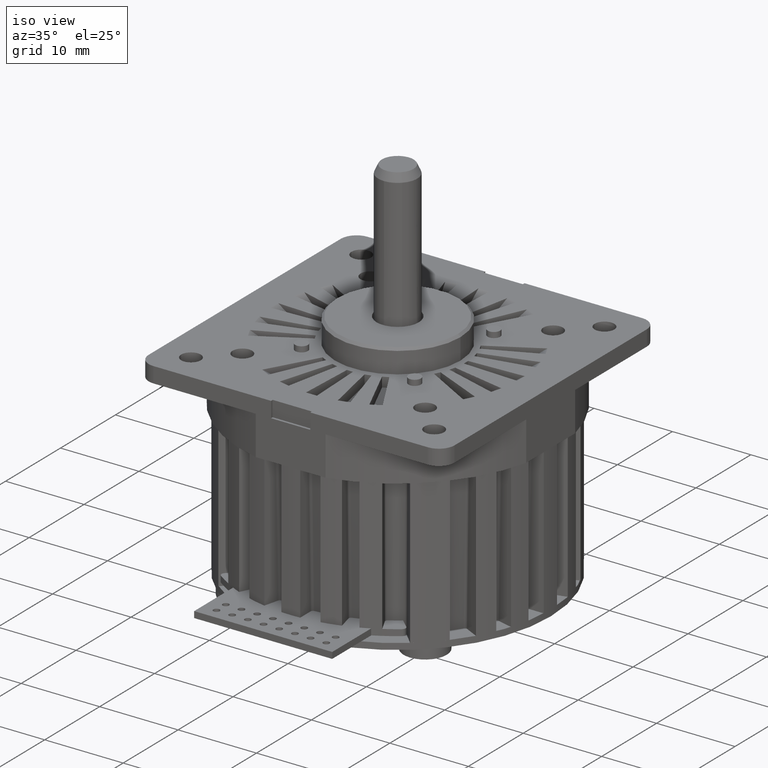
[diagram: clean part render]
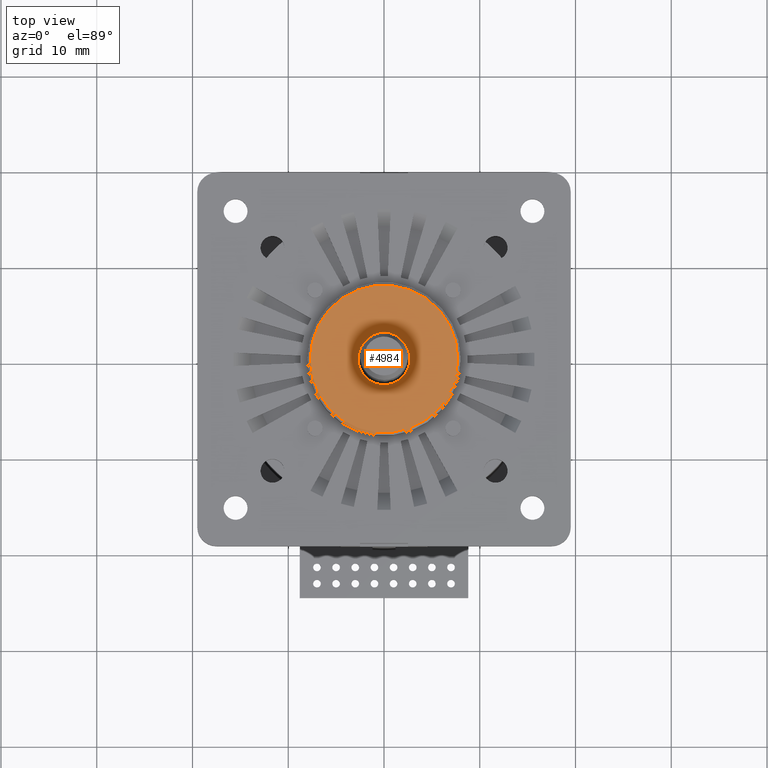
[diagram: tour spotlight — one face highlighted and labeled with its STEP entity id]
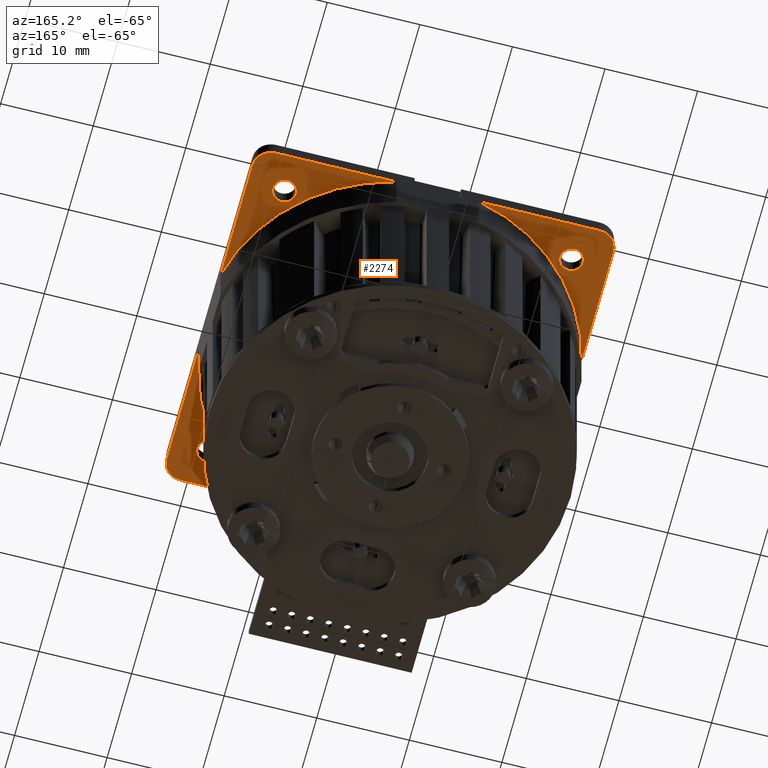
[diagram: tour spotlight — one face highlighted and labeled with its STEP entity id]
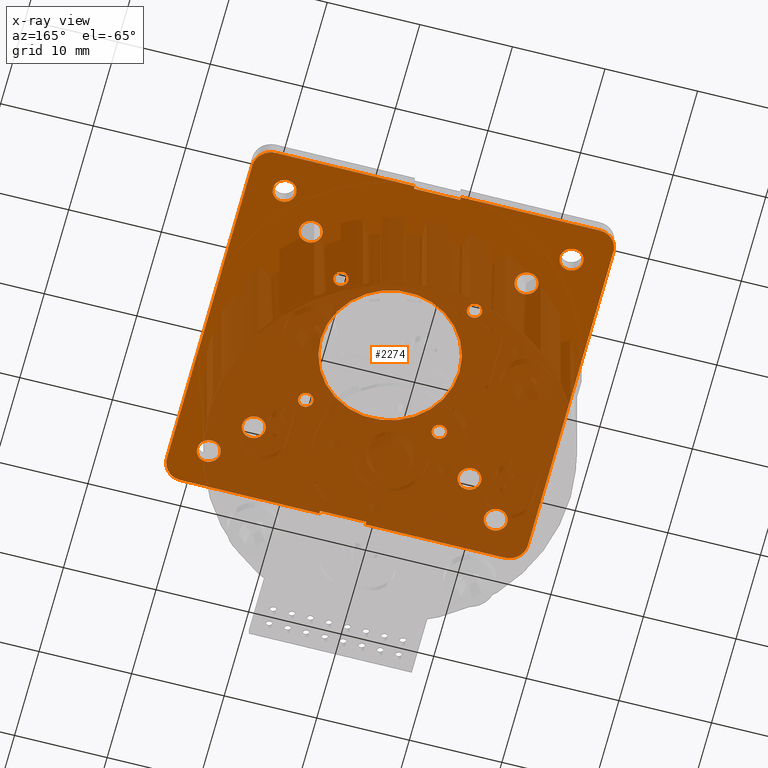
[diagram: x-ray of the same camera — body ghosted, this tour face saturated]
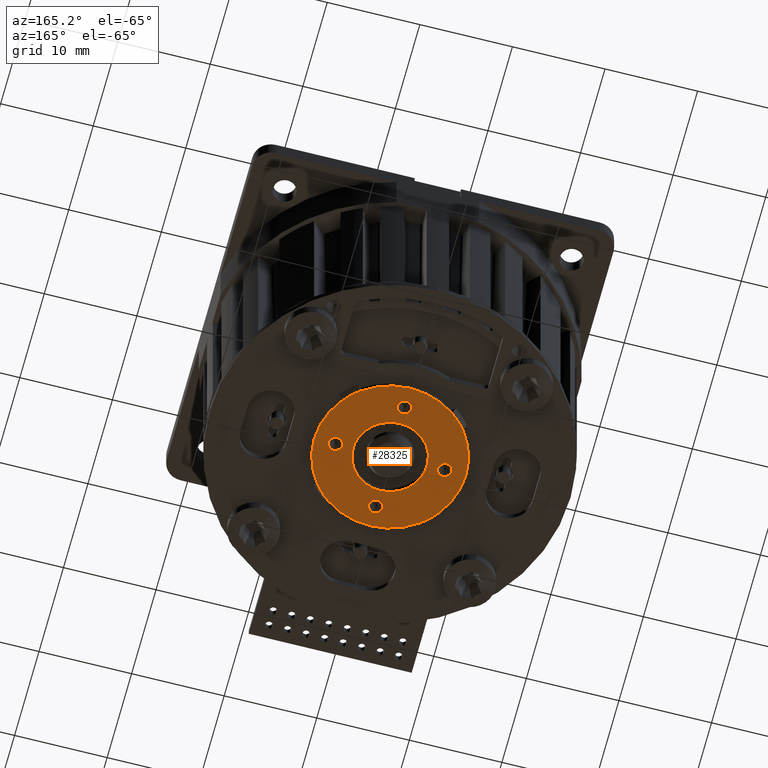
[diagram: tour spotlight — one face highlighted and labeled with its STEP entity id]
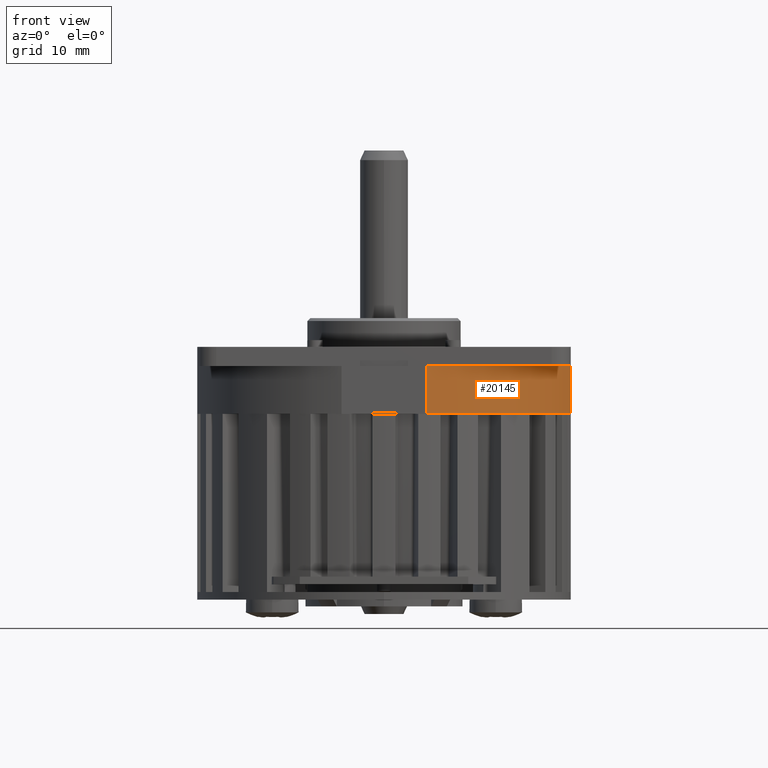
[diagram: tour spotlight — one face highlighted and labeled with its STEP entity id]
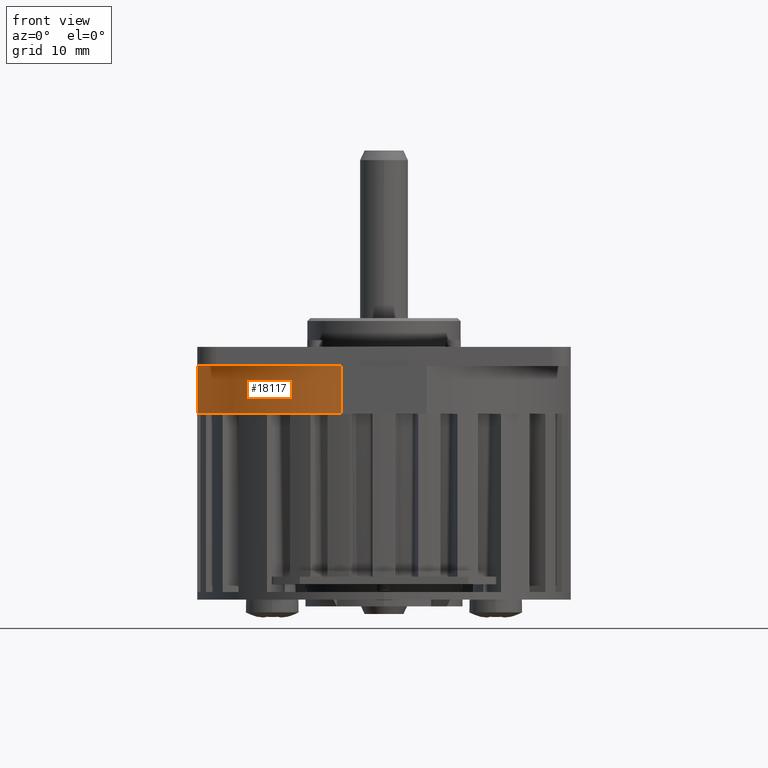
[diagram: tour spotlight — one face highlighted and labeled with its STEP entity id]
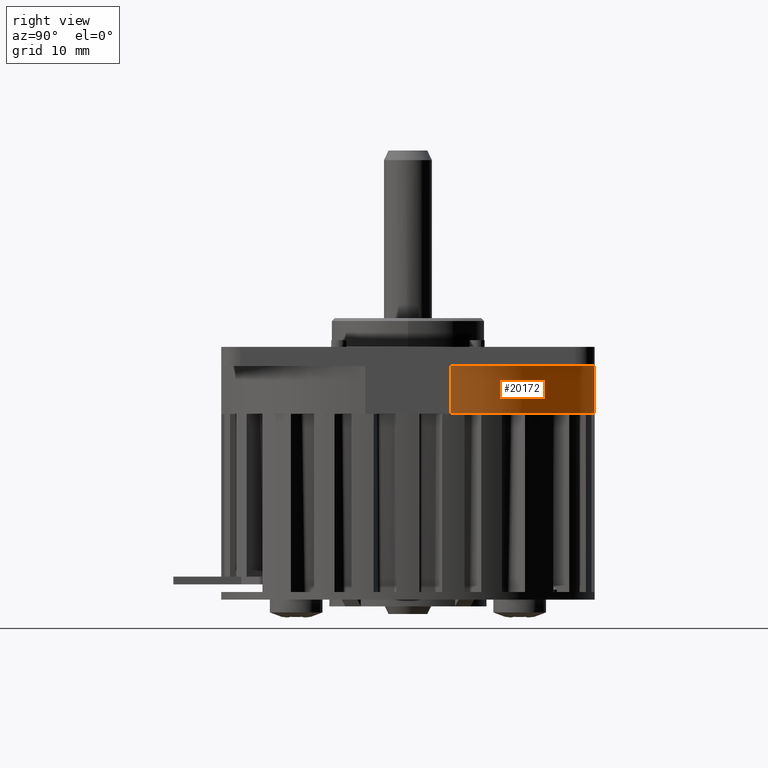
[diagram: tour spotlight — one face highlighted and labeled with its STEP entity id]
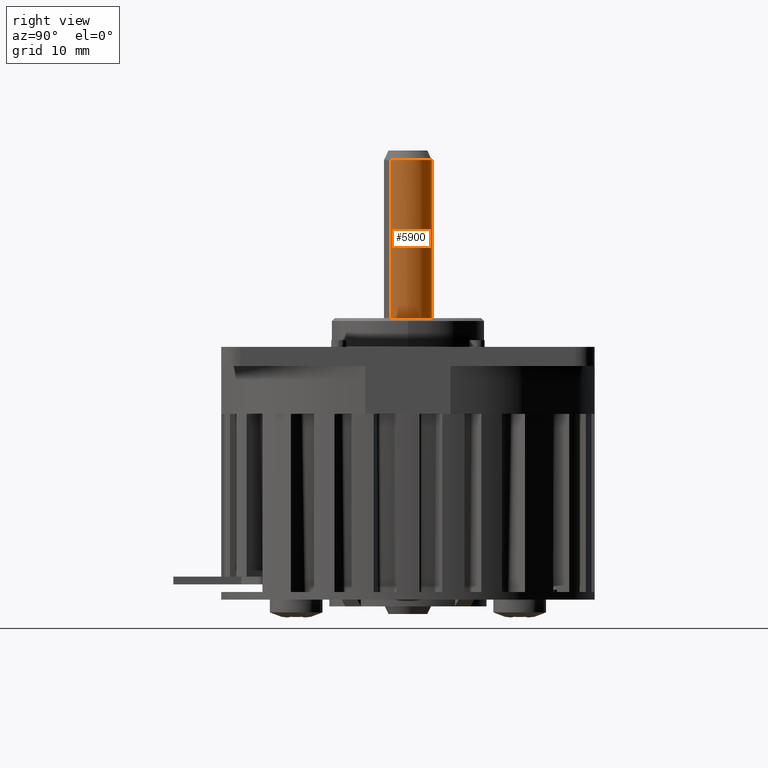
[diagram: tour spotlight — one face highlighted and labeled with its STEP entity id]
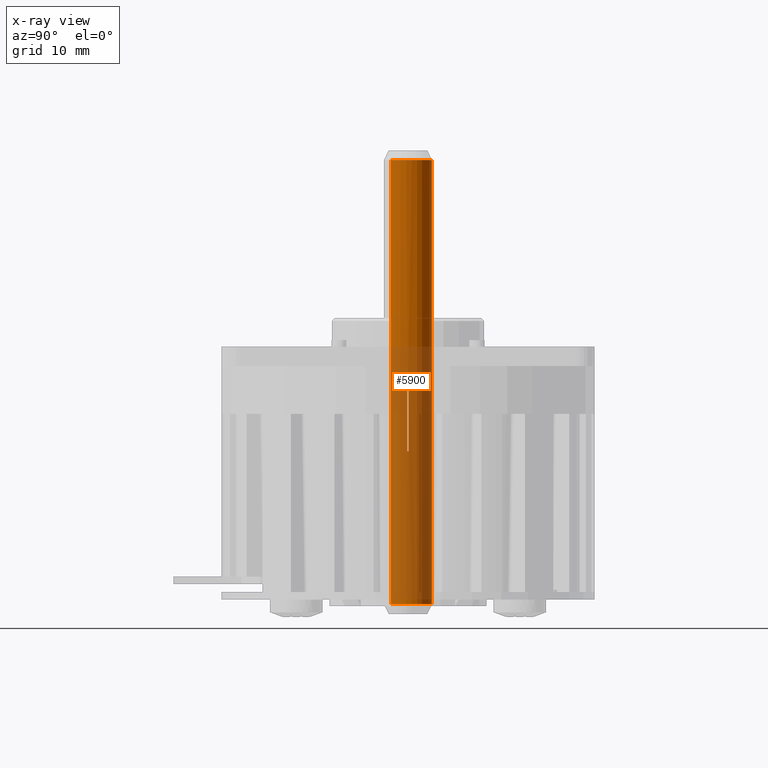
[diagram: x-ray of the same camera — body ghosted, this tour face saturated]
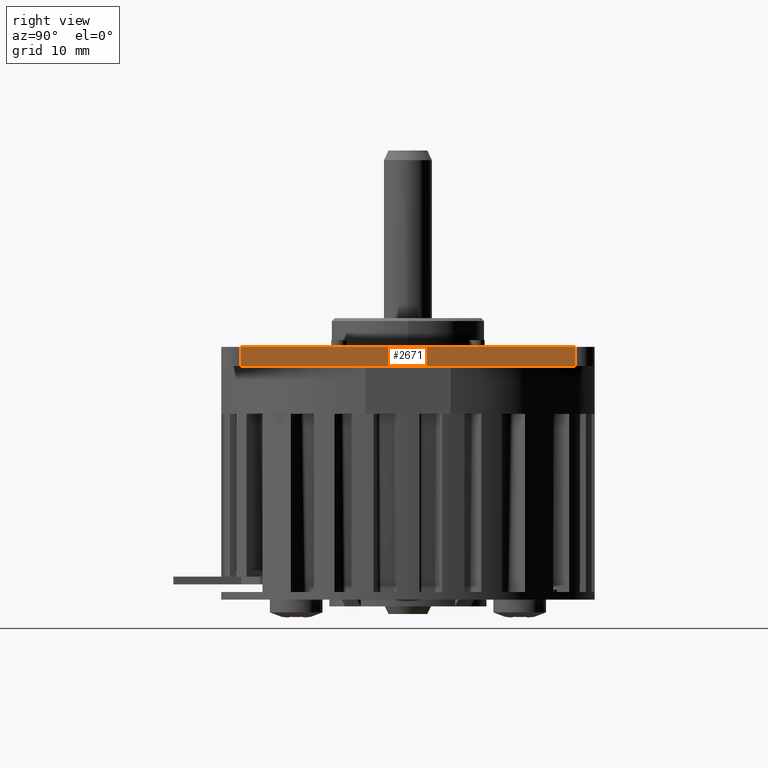
[diagram: tour spotlight — one face highlighted and labeled with its STEP entity id]
A machine part: a face-by-face anatomy tour. The part has 991 B-rep faces; the first image is the clean iso view, then the 8 largest visible faces are spotlighted one at a time (largest first), each with its STEP entity span.

Face 1 — top view, entity #4984. In plain terms, the highlighted planar face has unit normal (0, 0, 1).
Definition (entity closure, byte-faithful):
#4794=CARTESIAN_POINT('',(0.E0,0.E0,5.35E0));
#4795=DIRECTION('',(0.E0,0.E0,1.E0));
#4796=DIRECTION('',(-1.E0,0.E0,0.E0));
#4797=AXIS2_PLACEMENT_3D('',#4794,#4795,#4796);
#4799=CARTESIAN_POINT('',(0.E0,0.E0,5.35E0));
#4800=DIRECTION('',(0.E0,0.E0,1.E0));
#4801=DIRECTION('',(1.E0,0.E0,0.E0));
#4802=AXIS2_PLACEMENT_3D('',#4799,#4800,#4801);
#4804=CARTESIAN_POINT('',(0.E0,0.E0,5.35E0));
#4805=DIRECTION('',(0.E0,0.E0,-1.E0));
#4806=DIRECTION('',(-1.E0,0.E0,0.E0));
#4807=AXIS2_PLACEMENT_3D('',#4804,#4805,#4806);
#4809=CARTESIAN_POINT('',(0.E0,0.E0,5.35E0));
#4810=DIRECTION('',(0.E0,0.E0,-1.E0));
#4811=DIRECTION('',(1.E0,0.E0,0.E0));
#4812=AXIS2_PLACEMENT_3D('',#4809,#4810,#4811);
#4845=CARTESIAN_POINT('',(7.7E0,0.E0,5.35E0));
#4846=VERTEX_POINT('',#4845);
#4847=CARTESIAN_POINT('',(-7.7E0,0.E0,5.35E0));
#4848=VERTEX_POINT('',#4847);
#4853=CARTESIAN_POINT('',(2.7E0,0.E0,5.35E0));
#4854=CARTESIAN_POINT('',(-2.7E0,0.E0,5.35E0));
#4855=VERTEX_POINT('',#4853);
#4856=VERTEX_POINT('',#4854);
#4968=CARTESIAN_POINT('',(0.E0,0.E0,5.35E0));
#4969=DIRECTION('',(0.E0,0.E0,1.E0));
#4970=DIRECTION('',(1.E0,0.E0,0.E0));
#4971=AXIS2_PLACEMENT_3D('',#4968,#4969,#4970);
#4972=PLANE('',#4971);
#4974=ORIENTED_EDGE('',*,*,#4973,.F.);
#4975=ORIENTED_EDGE('',*,*,#4958,.F.);
#4976=EDGE_LOOP('',(#4974,#4975));
#4977=FACE_OUTER_BOUND('',#4976,.F.);
#4979=ORIENTED_EDGE('',*,*,#4978,.F.);
#4981=ORIENTED_EDGE('',*,*,#4980,.F.);
#4982=EDGE_LOOP('',(#4979,#4981));
#4983=FACE_BOUND('',#4982,.F.);
#4984=ADVANCED_FACE('',(#4977,#4983),#4972,.T.);
#4798=CIRCLE('',#4797,7.7E0);
#4803=CIRCLE('',#4802,7.7E0);
#4808=CIRCLE('',#4807,2.7E0);
#4813=CIRCLE('',#4812,2.7E0);
#4958=EDGE_CURVE('',#4846,#4848,#4803,.T.);
#4973=EDGE_CURVE('',#4848,#4846,#4798,.T.);
#4978=EDGE_CURVE('',#4856,#4855,#4808,.T.);
#4980=EDGE_CURVE('',#4855,#4856,#4813,.T.);

Face 2 — auxiliary view, entity #2274. An x-ray twin of the same camera follows (body ghosted, this face saturated) — the face is partly hidden behind the body. In plain terms, the highlighted planar face has unit normal (0, 0, 1).
Definition (entity closure, byte-faithful):
#1=CARTESIAN_POINT('',(3.7E1,3.7E1,2.E0));
#2=DIRECTION('',(0.E0,0.E0,1.E0));
#3=DIRECTION('',(1.E0,0.E0,0.E0));
#4=AXIS2_PLACEMENT_3D('',#1,#2,#3);
#6=DIRECTION('',(0.E0,1.E0,0.E0));
#7=VECTOR('',#6,3.5E1);
#8=CARTESIAN_POINT('',(3.9E1,2.E0,2.E0));
#9=LINE('',#8,#7);
#10=CARTESIAN_POINT('',(3.7E1,2.E0,2.E0));
#11=DIRECTION('',(0.E0,0.E0,1.E0));
#12=DIRECTION('',(-6.430411758629E-13,-1.E0,0.E0));
#13=AXIS2_PLACEMENT_3D('',#10,#11,#12);
#15=DIRECTION('',(4.736951571735E-14,-1.E0,0.E0));
#16=VECTOR('',#15,2.999999999999E-1);
#17=CARTESIAN_POINT('',(2.2E1,3.E-1,2.E0));
#18=LINE('',#17,#16);
#19=CARTESIAN_POINT('',(2.E0,2.E0,2.E0));
#20=DIRECTION('',(0.E0,0.E0,1.E0));
#21=DIRECTION('',(-1.E0,0.E0,0.E0));
#22=AXIS2_PLACEMENT_3D('',#19,#20,#21);
#24=DIRECTION('',(0.E0,-1.E0,0.E0));
#25=VECTOR('',#24,3.5E1);
#26=CARTESIAN_POINT('',(-4.796163466381E-14,3.7E1,2.E0));
#27=LINE('',#26,#25);
#28=CARTESIAN_POINT('',(2.E0,3.7E1,2.E0));
#29=DIRECTION('',(0.E0,0.E0,1.E0));
#30=DIRECTION('',(0.E0,1.E0,0.E0));
#31=AXIS2_PLACEMENT_3D('',#28,#29,#30);
#33=DIRECTION('',(-1.184237892934E-14,1.E0,2.072416312634E-14));
#34=VECTOR('',#33,3.E-1);
#35=CARTESIAN_POINT('',(1.7E1,3.87E1,2.E0));
#36=LINE('',#35,#34);
#37=DIRECTION('',(-1.E0,0.E0,0.E0));
#38=VECTOR('',#37,5.E0);
#39=CARTESIAN_POINT('',(2.2E1,3.87E1,2.E0));
#40=LINE('',#39,#38);
#41=CARTESIAN_POINT('',(3.5E1,3.5E1,2.E0));
#42=DIRECTION('',(0.E0,0.E0,-1.E0));
#43=DIRECTION('',(-1.E0,0.E0,0.E0));
#44=AXIS2_PLACEMENT_3D('',#41,#42,#43);
#46=CARTESIAN_POINT('',(3.5E1,3.5E1,2.E0));
#47=DIRECTION('',(0.E0,0.E0,-1.E0));
#48=DIRECTION('',(1.E0,0.E0,0.E0));
#49=AXIS2_PLACEMENT_3D('',#46,#47,#48);
#51=CARTESIAN_POINT('',(3.115E1,3.115E1,2.E0));
#52=DIRECTION('',(0.E0,0.E0,-1.E0));
#53=DIRECTION('',(-1.E0,0.E0,0.E0));
#54=AXIS2_PLACEMENT_3D('',#51,#52,#53);
#56=CARTESIAN_POINT('',(3.115E1,3.115E1,2.E0));
#57=DIRECTION('',(0.E0,0.E0,-1.E0));
#58=DIRECTION('',(1.E0,0.E0,0.E0));
#59=AXIS2_PLACEMENT_3D('',#56,#57,#58);
#61=CARTESIAN_POINT('',(4.E0,3.5E1,2.E0));
#62=DIRECTION('',(0.E0,0.E0,-1.E0));
#63=DIRECTION('',(-1.E0,0.E0,0.E0));
#64=AXIS2_PLACEMENT_3D('',#61,#62,#63);
#66=CARTESIAN_POINT('',(4.E0,3.5E1,2.E0));
#67=DIRECTION('',(0.E0,0.E0,-1.E0));
#68=DIRECTION('',(1.E0,0.E0,0.E0));
#69=AXIS2_PLACEMENT_3D('',#66,#67,#68);
#71=CARTESIAN_POINT('',(7.85E0,3.115E1,2.E0));
#72=DIRECTION('',(0.E0,0.E0,-1.E0));
#73=DIRECTION('',(-1.E0,0.E0,0.E0));
#74=AXIS2_PLACEMENT_3D('',#71,#72,#73);
#76=CARTESIAN_POINT('',(7.85E0,3.115E1,2.E0));
#77=DIRECTION('',(0.E0,0.E0,-1.E0));
#78=DIRECTION('',(1.E0,0.E0,0.E0));
#79=AXIS2_PLACEMENT_3D('',#76,#77,#78);
#81=CARTESIAN_POINT('',(3.5E1,4.E0,2.E0));
#82=DIRECTION('',(0.E0,0.E0,-1.E0));
#83=DIRECTION('',(-1.E0,0.E0,0.E0));
#84=AXIS2_PLACEMENT_3D('',#81,#82,#83);
#86=CARTESIAN_POINT('',(3.5E1,4.E0,2.E0));
#87=DIRECTION('',(0.E0,0.E0,-1.E0));
#88=DIRECTION('',(1.E0,0.E0,0.E0));
#89=AXIS2_PLACEMENT_3D('',#86,#87,#88);
#91=CARTESIAN_POINT('',(3.115E1,7.85E0,2.E0));
#92=DIRECTION('',(0.E0,0.E0,-1.E0));
#93=DIRECTION('',(-1.E0,0.E0,0.E0));
#94=AXIS2_PLACEMENT_3D('',#91,#92,#93);
#96=CARTESIAN_POINT('',(3.115E1,7.85E0,2.E0));
#97=DIRECTION('',(0.E0,0.E0,-1.E0));
#98=DIRECTION('',(1.E0,0.E0,0.E0));
#99=AXIS2_PLACEMENT_3D('',#96,#97,#98);
#101=CARTESIAN_POINT('',(7.85E0,7.85E0,2.E0));
#102=DIRECTION('',(0.E0,0.E0,-1.E0));
#103=DIRECTION('',(-1.E0,0.E0,0.E0));
#104=AXIS2_PLACEMENT_3D('',#101,#102,#103);
#106=CARTESIAN_POINT('',(7.85E0,7.85E0,2.E0));
#107=DIRECTION('',(0.E0,0.E0,-1.E0));
#108=DIRECTION('',(1.E0,0.E0,0.E0));
#109=AXIS2_PLACEMENT_3D('',#106,#107,#108);
#111=CARTESIAN_POINT('',(4.E0,4.E0,2.E0));
#112=DIRECTION('',(0.E0,0.E0,-1.E0));
#113=DIRECTION('',(-1.E0,0.E0,0.E0));
#114=AXIS2_PLACEMENT_3D('',#111,#112,#113);
#116=CARTESIAN_POINT('',(4.E0,4.E0,2.E0));
#117=DIRECTION('',(0.E0,0.E0,-1.E0));
#118=DIRECTION('',(1.E0,0.E0,0.E0));
#119=AXIS2_PLACEMENT_3D('',#116,#117,#118);
#121=CARTESIAN_POINT('',(1.228751083190E1,1.228751083190E1,2.E0));
#122=DIRECTION('',(0.E0,0.E0,-1.E0));
#123=DIRECTION('',(1.E0,0.E0,0.E0));
#124=AXIS2_PLACEMENT_3D('',#121,#122,#123);
#126=CARTESIAN_POINT('',(1.228751083190E1,1.228751083190E1,2.E0));
#127=DIRECTION('',(0.E0,0.E0,-1.E0));
#128=DIRECTION('',(-1.E0,-4.884981308351E-14,0.E0));
#129=AXIS2_PLACEMENT_3D('',#126,#127,#128);
#131=CARTESIAN_POINT('',(2.671248916810E1,2.671248916810E1,2.E0));
#132=DIRECTION('',(0.E0,0.E0,-1.E0));
#133=DIRECTION('',(-1.E0,0.E0,0.E0));
#134=AXIS2_PLACEMENT_3D('',#131,#132,#133);
#136=CARTESIAN_POINT('',(2.671248916810E1,2.671248916810E1,2.E0));
#137=DIRECTION('',(0.E0,0.E0,-1.E0));
#138=DIRECTION('',(1.E0,0.E0,0.E0));
#139=AXIS2_PLACEMENT_3D('',#136,#137,#138);
#141=CARTESIAN_POINT('',(1.95E1,1.95E1,2.E0));
#142=DIRECTION('',(0.E0,0.E0,-1.E0));
#143=DIRECTION('',(-1.E0,0.E0,0.E0));
#144=AXIS2_PLACEMENT_3D('',#141,#142,#143);
#146=CARTESIAN_POINT('',(1.95E1,1.95E1,2.E0));
#147=DIRECTION('',(0.E0,0.E0,-1.E0));
#148=DIRECTION('',(1.E0,0.E0,0.E0));
#149=AXIS2_PLACEMENT_3D('',#146,#147,#148);
#151=CARTESIAN_POINT('',(2.671248916810E1,1.228751083190E1,2.E0));
#152=DIRECTION('',(0.E0,0.E0,-1.E0));
#153=DIRECTION('',(-1.E0,0.E0,0.E0));
#154=AXIS2_PLACEMENT_3D('',#151,#152,#153);
#156=CARTESIAN_POINT('',(2.671248916810E1,1.228751083190E1,2.E0));
#157=DIRECTION('',(0.E0,0.E0,-1.E0));
#158=DIRECTION('',(1.E0,0.E0,0.E0));
#159=AXIS2_PLACEMENT_3D('',#156,#157,#158);
#161=CARTESIAN_POINT('',(1.228751083190E1,2.671248916810E1,2.E0));
#162=DIRECTION('',(0.E0,0.E0,-1.E0));
#163=DIRECTION('',(1.E0,0.E0,0.E0));
#164=AXIS2_PLACEMENT_3D('',#161,#162,#163);
#166=CARTESIAN_POINT('',(1.228751083190E1,2.671248916810E1,2.E0));
#167=DIRECTION('',(0.E0,0.E0,-1.E0));
#168=DIRECTION('',(-1.E0,0.E0,0.E0));
#169=AXIS2_PLACEMENT_3D('',#166,#167,#168);
#175=DIRECTION('',(1.184237892934E-14,1.E0,2.590520390792E-14));
#176=VECTOR('',#175,3.E-1);
#177=CARTESIAN_POINT('',(2.2E1,3.87E1,2.E0));
#178=LINE('',#177,#176);
#593=DIRECTION('',(1.E0,0.E0,0.E0));
#594=VECTOR('',#593,1.5E1);
#595=CARTESIAN_POINT('',(2.E0,3.9E1,2.E0));
#596=LINE('',#595,#594);
#621=DIRECTION('',(-1.E0,0.E0,0.E0));
#622=VECTOR('',#621,1.5E1);
#623=CARTESIAN_POINT('',(1.7E1,0.E0,2.E0));
#624=LINE('',#623,#622);
#629=DIRECTION('',(-1.184237892934E-14,-1.E0,0.E0));
#630=VECTOR('',#629,3.E-1);
#631=CARTESIAN_POINT('',(1.7E1,3.E-1,2.E0));
#632=LINE('',#631,#630);
#641=DIRECTION('',(-1.E0,0.E0,0.E0));
#642=VECTOR('',#641,5.E0);
#643=CARTESIAN_POINT('',(2.2E1,3.E-1,2.E0));
#644=LINE('',#643,#642);
#653=DIRECTION('',(-1.E0,0.E0,0.E0));
#654=VECTOR('',#653,1.5E1);
#655=CARTESIAN_POINT('',(3.7E1,4.914587255674E-14,2.E0));
#656=LINE('',#655,#654);
#681=DIRECTION('',(1.E0,0.E0,0.E0));
#682=VECTOR('',#681,1.5E1);
#683=CARTESIAN_POINT('',(2.2E1,3.9E1,2.E0));
#684=LINE('',#683,#682);
#1637=CARTESIAN_POINT('',(5.25E0,3.5E1,2.E0));
#1638=CARTESIAN_POINT('',(2.75E0,3.5E1,2.E0));
#1639=VERTEX_POINT('',#1637);
#1640=VERTEX_POINT('',#1638);
#1641=CARTESIAN_POINT('',(3.24E1,3.115E1,2.E0));
#1642=CARTESIAN_POINT('',(2.99E1,3.115E1,2.E0));
#1643=VERTEX_POINT('',#1641);
#1644=VERTEX_POINT('',#1642);
#1645=CARTESIAN_POINT('',(3.625E1,3.5E1,2.E0));
#1647=VERTEX_POINT('',#1645);
#1651=CARTESIAN_POINT('',(3.375E1,3.5E1,2.E0));
#1652=VERTEX_POINT('',#1651);
#1653=CARTESIAN_POINT('',(9.1E0,3.115E1,2.E0));
#1654=CARTESIAN_POINT('',(6.6E0,3.115E1,2.E0));
#1655=VERTEX_POINT('',#1653);
#1656=VERTEX_POINT('',#1654);
#1661=CARTESIAN_POINT('',(3.625E1,4.E0,2.E0));
#1662=CARTESIAN_POINT('',(3.375E1,4.E0,2.E0));
#1663=VERTEX_POINT('',#1661);
#1664=VERTEX_POINT('',#1662);
#1669=CARTESIAN_POINT('',(3.24E1,7.85E0,2.E0));
#1670=CARTESIAN_POINT('',(2.99E1,7.85E0,2.E0));
#1671=VERTEX_POINT('',#1669);
#1672=VERTEX_POINT('',#1670);
#1677=CARTESIAN_POINT('',(9.1E0,7.85E0,2.E0));
#1678=CARTESIAN_POINT('',(6.6E0,7.85E0,2.E0));
#1679=VERTEX_POINT('',#1677);
#1680=VERTEX_POINT('',#1678);
#1685=CARTESIAN_POINT('',(5.25E0,4.E0,2.E0));
#1686=CARTESIAN_POINT('',(2.75E0,4.E0,2.E0));
#1687=VERTEX_POINT('',#1685);
#1688=VERTEX_POINT('',#1686);
#1701=CARTESIAN_POINT('',(1.308751083190E1,1.228751083190E1,2.E0));
#1702=CARTESIAN_POINT('',(1.148751083190E1,1.228751083190E1,2.E0));
#1703=VERTEX_POINT('',#1701);
#1704=VERTEX_POINT('',#1702);
#1721=CARTESIAN_POINT('',(2.751248916810E1,2.671248916810E1,2.E0));
#1722=CARTESIAN_POINT('',(2.591248916810E1,2.671248916810E1,2.E0));
#1723=VERTEX_POINT('',#1721);
#1724=VERTEX_POINT('',#1722);
#1725=CARTESIAN_POINT('',(1.308751083190E1,2.671248916810E1,2.E0));
#1726=CARTESIAN_POINT('',(1.148751083190E1,2.671248916810E1,2.E0));
#1727=VERTEX_POINT('',#1725);
#1728=VERTEX_POINT('',#1726);
#1733=CARTESIAN_POINT('',(2.751248916810E1,1.228751083190E1,2.E0));
#1734=CARTESIAN_POINT('',(2.591248916810E1,1.228751083190E1,2.E0));
#1735=VERTEX_POINT('',#1733);
#1736=VERTEX_POINT('',#1734);
#1741=CARTESIAN_POINT('',(2.7E1,1.95E1,2.E0));
#1742=CARTESIAN_POINT('',(1.2E1,1.95E1,2.E0));
#1743=VERTEX_POINT('',#1741);
#1744=VERTEX_POINT('',#1742);
#1757=CARTESIAN_POINT('',(2.2E1,3.87E1,2.E0));
#1758=CARTESIAN_POINT('',(2.2E1,3.9E1,2.E0));
#1759=VERTEX_POINT('',#1757);
#1760=VERTEX_POINT('',#1758);
#1761=CARTESIAN_POINT('',(2.E0,3.9E1,2.E0));
#1762=CARTESIAN_POINT('',(1.7E1,3.9E1,2.E0));
#1763=VERTEX_POINT('',#1761);
#1764=VERTEX_POINT('',#1762);
#1765=CARTESIAN_POINT('',(1.7E1,3.87E1,2.E0));
#1766=VERTEX_POINT('',#1765);
#1767=CARTESIAN_POINT('',(-1.438849039914E-13,3.7E1,2.E0));
#1768=VERTEX_POINT('',#1767);
#1769=CARTESIAN_POINT('',(0.E0,2.E0,2.E0));
#1770=VERTEX_POINT('',#1769);
#1771=CARTESIAN_POINT('',(2.E0,0.E0,2.E0));
#1772=VERTEX_POINT('',#1771);
#1773=CARTESIAN_POINT('',(1.7E1,0.E0,2.E0));
#1774=VERTEX_POINT('',#1773);
#1775=CARTESIAN_POINT('',(1.7E1,3.E-1,2.E0));
#1776=VERTEX_POINT('',#1775);
#1777=CARTESIAN_POINT('',(2.2E1,3.E-1,2.E0));
#1778=VERTEX_POINT('',#1777);
#1779=CARTESIAN_POINT('',(2.2E1,4.973799150321E-14,2.E0));
#1780=VERTEX_POINT('',#1779);
#1781=CARTESIAN_POINT('',(3.7E1,4.914587255674E-14,2.E0));
#1782=VERTEX_POINT('',#1781);
#1783=CARTESIAN_POINT('',(3.9E1,2.E0,2.E0));
#1784=VERTEX_POINT('',#1783);
#1785=CARTESIAN_POINT('',(3.9E1,3.7E1,2.E0));
#1786=VERTEX_POINT('',#1785);
#1787=CARTESIAN_POINT('',(3.7E1,3.9E1,2.E0));
#1788=VERTEX_POINT('',#1787);
#2157=CARTESIAN_POINT('',(0.E0,0.E0,2.E0));
#2158=DIRECTION('',(0.E0,0.E0,-1.E0));
#2159=DIRECTION('',(-1.E0,0.E0,0.E0));
#2160=AXIS2_PLACEMENT_3D('',#2157,#2158,#2159);
#2161=PLANE('',#2160);
#2163=ORIENTED_EDGE('',*,*,#2162,.T.);
#2165=ORIENTED_EDGE('',*,*,#2164,.T.);
#2167=ORIENTED_EDGE('',*,*,#2166,.F.);
#2169=ORIENTED_EDGE('',*,*,#2168,.F.);
#2171=ORIENTED_EDGE('',*,*,#2170,.F.);
#2173=ORIENTED_EDGE('',*,*,#2172,.T.);
#2175=ORIENTED_EDGE('',*,*,#2174,.F.);
#2177=ORIENTED_EDGE('',*,*,#2176,.T.);
#2179=ORIENTED_EDGE('',*,*,#2178,.T.);
#2181=ORIENTED_EDGE('',*,*,#2180,.T.);
#2183=ORIENTED_EDGE('',*,*,#2182,.F.);
#2185=ORIENTED_EDGE('',*,*,#2184,.F.);
#2187=ORIENTED_EDGE('',*,*,#2186,.F.);
#2189=ORIENTED_EDGE('',*,*,#2188,.T.);
#2191=ORIENTED_EDGE('',*,*,#2190,.F.);
#2193=ORIENTED_EDGE('',*,*,#2192,.F.);
#2194=EDGE_LOOP('',(#2163,#2165,#2167,#2169,#2171,#2173,#2175,#2177,#2179,#2181,
#2183,#2185,#2187,#2189,#2191,#2193));
#2195=FACE_OUTER_BOUND('',#2194,.F.);
#2197=ORIENTED_EDGE('',*,*,#2196,.F.);
#2199=ORIENTED_EDGE('',*,*,#2198,.F.);
#2200=EDGE_LOOP('',(#2197,#2199));
#2201=FACE_BOUND('',#2200,.F.);
#2203=ORIENTED_EDGE('',*,*,#2202,.F.);
#2205=ORIENTED_EDGE('',*,*,#2204,.F.);
#2206=EDGE_LOOP('',(#2203,#2205));
#2207=FACE_BOUND('',#2206,.F.);
#2209=ORIENTED_EDGE('',*,*,#2208,.F.);
#2211=ORIENTED_EDGE('',*,*,#2210,.F.);
#2212=EDGE_LOOP('',(#2209,#2211));
#2213=FACE_BOUND('',#2212,.F.);
#2215=ORIENTED_EDGE('',*,*,#2214,.F.);
#2217=ORIENTED_EDGE('',*,*,#2216,.F.);
#2218=EDGE_LOOP('',(#2215,#2217));
#2219=FACE_BOUND('',#2218,.F.);
#2221=ORIENTED_EDGE('',*,*,#2220,.F.);
#2223=ORIENTED_EDGE('',*,*,#2222,.F.);
#2224=EDGE_LOOP('',(#2221,#2223));
#2225=FACE_BOUND('',#2224,.F.);
#2227=ORIENTED_EDGE('',*,*,#2226,.F.);
#2229=ORIENTED_EDGE('',*,*,#2228,.F.);
#2230=EDGE_LOOP('',(#2227,#2229));
#2231=FACE_BOUND('',#2230,.F.);
#2233=ORIENTED_EDGE('',*,*,#2232,.F.);
#2235=ORIENTED_EDGE('',*,*,#2234,.F.);
#2236=EDGE_LOOP('',(#2233,#2235));
#2237=FACE_BOUND('',#2236,.F.);
#2239=ORIENTED_EDGE('',*,*,#2238,.F.);
#2241=ORIENTED_EDGE('',*,*,#2240,.F.);
#2242=EDGE_LOOP('',(#2239,#2241));
#2243=FACE_BOUND('',#2242,.F.);
#2245=ORIENTED_EDGE('',*,*,#2244,.F.);
#2247=ORIENTED_EDGE('',*,*,#2246,.F.);
#2248=EDGE_LOOP('',(#2245,#2247));
#2249=FACE_BOUND('',#2248,.F.);
#2251=ORIENTED_EDGE('',*,*,#2250,.F.);
#2253=ORIENTED_EDGE('',*,*,#2252,.F.);
#2254=EDGE_LOOP('',(#2251,#2253));
#2255=FACE_BOUND('',#2254,.F.);
#2257=ORIENTED_EDGE('',*,*,#2256,.F.);
#2259=ORIENTED_EDGE('',*,*,#2258,.F.);
#2260=EDGE_LOOP('',(#2257,#2259));
#2261=FACE_BOUND('',#2260,.F.);
#2263=ORIENTED_EDGE('',*,*,#2262,.F.);
#2265=ORIENTED_EDGE('',*,*,#2264,.F.);
#2266=EDGE_LOOP('',(#2263,#2265));
#2267=FACE_BOUND('',#2266,.F.);
#2269=ORIENTED_EDGE('',*,*,#2268,.F.);
#2271=ORIENTED_EDGE('',*,*,#2270,.F.);
#2272=EDGE_LOOP('',(#2269,#2271));
#2273=FACE_BOUND('',#2272,.F.);
#2274=ADVANCED_FACE('',(#2195,#2201,#2207,#2213,#2219,#2225,#2231,#2237,#2243,
#2249,#2255,#2261,#2267,#2273),#2161,.F.);
#5=CIRCLE('',#4,2.E0);
#14=CIRCLE('',#13,2.E0);
#23=CIRCLE('',#22,2.E0);
#32=CIRCLE('',#31,2.E0);
#45=CIRCLE('',#44,1.25E0);
#50=CIRCLE('',#49,1.25E0);
#55=CIRCLE('',#54,1.25E0);
#60=CIRCLE('',#59,1.25E0);
#65=CIRCLE('',#64,1.25E0);
#70=CIRCLE('',#69,1.25E0);
#75=CIRCLE('',#74,1.25E0);
#80=CIRCLE('',#79,1.25E0);
#85=CIRCLE('',#84,1.25E0);
#90=CIRCLE('',#89,1.25E0);
#95=CIRCLE('',#94,1.25E0);
#100=CIRCLE('',#99,1.25E0);
#105=CIRCLE('',#104,1.25E0);
#110=CIRCLE('',#109,1.25E0);
#115=CIRCLE('',#114,1.25E0);
#120=CIRCLE('',#119,1.25E0);
#125=CIRCLE('',#124,8.E-1);
#130=CIRCLE('',#129,8.E-1);
#135=CIRCLE('',#134,8.E-1);
#140=CIRCLE('',#139,8.E-1);
#145=CIRCLE('',#144,7.5E0);
#150=CIRCLE('',#149,7.5E0);
#155=CIRCLE('',#154,8.E-1);
#160=CIRCLE('',#159,8.E-1);
#165=CIRCLE('',#164,8.E-1);
#170=CIRCLE('',#169,8.E-1);
#2162=EDGE_CURVE('',#1759,#1760,#178,.T.);
#2164=EDGE_CURVE('',#1760,#1788,#684,.T.);
#2166=EDGE_CURVE('',#1786,#1788,#5,.T.);
#2168=EDGE_CURVE('',#1784,#1786,#9,.T.);
#2170=EDGE_CURVE('',#1782,#1784,#14,.T.);
#2172=EDGE_CURVE('',#1782,#1780,#656,.T.);
#2174=EDGE_CURVE('',#1778,#1780,#18,.T.);
#2176=EDGE_CURVE('',#1778,#1776,#644,.T.);
#2178=EDGE_CURVE('',#1776,#1774,#632,.T.);
#2180=EDGE_CURVE('',#1774,#1772,#624,.T.);
#2182=EDGE_CURVE('',#1770,#1772,#23,.T.);
#2184=EDGE_CURVE('',#1768,#1770,#27,.T.);
#2186=EDGE_CURVE('',#1763,#1768,#32,.T.);
#2188=EDGE_CURVE('',#1763,#1764,#596,.T.);
#2190=EDGE_CURVE('',#1766,#1764,#36,.T.);
#2192=EDGE_CURVE('',#1759,#1766,#40,.T.);
#2196=EDGE_CURVE('',#1652,#1647,#45,.T.);
#2198=EDGE_CURVE('',#1647,#1652,#50,.T.);
#2202=EDGE_CURVE('',#1644,#1643,#55,.T.);
#2204=EDGE_CURVE('',#1643,#1644,#60,.T.);
#2208=EDGE_CURVE('',#1640,#1639,#65,.T.);
#2210=EDGE_CURVE('',#1639,#1640,#70,.T.);
#2214=EDGE_CURVE('',#1656,#1655,#75,.T.);
#2216=EDGE_CURVE('',#1655,#1656,#80,.T.);
#2220=EDGE_CURVE('',#1664,#1663,#85,.T.);
#2222=EDGE_CURVE('',#1663,#1664,#90,.T.);
#2226=EDGE_CURVE('',#1672,#1671,#95,.T.);
#2228=EDGE_CURVE('',#1671,#1672,#100,.T.);
#2232=EDGE_CURVE('',#1680,#1679,#105,.T.);
#2234=EDGE_CURVE('',#1679,#1680,#110,.T.);
#2238=EDGE_CURVE('',#1688,#1687,#115,.T.);
#2240=EDGE_CURVE('',#1687,#1688,#120,.T.);
#2244=EDGE_CURVE('',#1703,#1704,#125,.T.);
#2246=EDGE_CURVE('',#1704,#1703,#130,.T.);
#2250=EDGE_CURVE('',#1724,#1723,#135,.T.);
#2252=EDGE_CURVE('',#1723,#1724,#140,.T.);
#2256=EDGE_CURVE('',#1744,#1743,#145,.T.);
#2258=EDGE_CURVE('',#1743,#1744,#150,.T.);
#2262=EDGE_CURVE('',#1736,#1735,#155,.T.);
#2264=EDGE_CURVE('',#1735,#1736,#160,.T.);
#2268=EDGE_CURVE('',#1727,#1728,#165,.T.);
#2270=EDGE_CURVE('',#1728,#1727,#170,.T.);

Face 3 — auxiliary view, entity #28325. In plain terms, the highlighted planar face has unit normal (0, 0, -1).
Definition (entity closure, byte-faithful):
#26331=CARTESIAN_POINT('',(0.E0,1.5E0,0.E0));
#26332=DIRECTION('',(0.E0,1.E0,0.E0));
#26333=DIRECTION('',(-6.009510211991E-1,0.E0,7.992858500685E-1));
#26334=AXIS2_PLACEMENT_3D('',#26331,#26332,#26333);
#26336=CARTESIAN_POINT('',(0.E0,1.5E0,0.E0));
#26337=DIRECTION('',(0.E0,1.E0,0.E0));
#26338=DIRECTION('',(-7.992858500685E-1,0.E0,6.009510211991E-1));
#26339=AXIS2_PLACEMENT_3D('',#26336,#26337,#26338);
#26341=CARTESIAN_POINT('',(0.E0,1.5E0,0.E0));
#26342=DIRECTION('',(0.E0,1.E0,0.E0));
#26343=DIRECTION('',(-7.992858500685E-1,0.E0,-6.009510211991E-1));
#26344=AXIS2_PLACEMENT_3D('',#26341,#26342,#26343);
#26346=CARTESIAN_POINT('',(0.E0,1.5E0,0.E0));
#26347=DIRECTION('',(0.E0,1.E0,0.E0));
#26348=DIRECTION('',(-6.009510211991E-1,0.E0,-7.992858500685E-1));
#26349=AXIS2_PLACEMENT_3D('',#26346,#26347,#26348);
#26351=CARTESIAN_POINT('',(0.E0,1.5E0,0.E0));
#26352=DIRECTION('',(0.E0,1.E0,0.E0));
#26353=DIRECTION('',(0.E0,0.E0,-1.E0));
#26354=AXIS2_PLACEMENT_3D('',#26351,#26352,#26353);
#26356=CARTESIAN_POINT('',(0.E0,1.5E0,0.E0));
#26357=DIRECTION('',(0.E0,1.E0,0.E0));
#26358=DIRECTION('',(6.009510211991E-1,0.E0,-7.992858500685E-1));
#26359=AXIS2_PLACEMENT_3D('',#26356,#26357,#26358);
#26361=CARTESIAN_POINT('',(0.E0,1.5E0,0.E0));
#26362=DIRECTION('',(0.E0,1.E0,0.E0));
#26363=DIRECTION('',(7.992858500685E-1,0.E0,-6.009510211991E-1));
#26364=AXIS2_PLACEMENT_3D('',#26361,#26362,#26363);
#26366=CARTESIAN_POINT('',(0.E0,1.5E0,0.E0));
#26367=DIRECTION('',(0.E0,1.E0,0.E0));
#26368=DIRECTION('',(7.992858500685E-1,0.E0,6.009510211991E-1));
#26369=AXIS2_PLACEMENT_3D('',#26366,#26367,#26368);
#26371=CARTESIAN_POINT('',(0.E0,1.5E0,0.E0));
#26372=DIRECTION('',(0.E0,1.E0,0.E0));
#26373=DIRECTION('',(6.009510211991E-1,0.E0,7.992858500685E-1));
#26374=AXIS2_PLACEMENT_3D('',#26371,#26372,#26373);
#26376=CARTESIAN_POINT('',(5.9E0,1.5E0,-6.179925549164E-14));
#26377=DIRECTION('',(0.E0,-1.E0,0.E0));
#26378=DIRECTION('',(-2.842170943040E-14,0.E0,1.E0));
#26379=AXIS2_PLACEMENT_3D('',#26376,#26377,#26378);
#26381=CARTESIAN_POINT('',(5.9E0,1.5E0,-6.179925549164E-14));
#26382=DIRECTION('',(0.E0,-1.E0,0.E0));
#26383=DIRECTION('',(0.E0,0.E0,-1.E0));
#26384=AXIS2_PLACEMENT_3D('',#26381,#26382,#26383);
#26386=CARTESIAN_POINT('',(4.119950366109E-14,1.5E0,5.9E0));
#26387=DIRECTION('',(0.E0,-1.E0,0.E0));
#26388=DIRECTION('',(0.E0,0.E0,1.E0));
#26389=AXIS2_PLACEMENT_3D('',#26386,#26387,#26388);
#26391=CARTESIAN_POINT('',(4.119950366109E-14,1.5E0,5.9E0));
#26392=DIRECTION('',(0.E0,-1.E0,0.E0));
#26393=DIRECTION('',(0.E0,0.E0,-1.E0));
#26394=AXIS2_PLACEMENT_3D('',#26391,#26392,#26393);
#26396=CARTESIAN_POINT('',(-5.9E0,1.5E0,2.059975183055E-14));
#26397=DIRECTION('',(0.E0,-1.E0,0.E0));
#26398=DIRECTION('',(-2.842170943040E-14,0.E0,1.E0));
#26399=AXIS2_PLACEMENT_3D('',#26396,#26397,#26398);
#26401=CARTESIAN_POINT('',(-5.9E0,1.5E0,2.059975183055E-14));
#26402=DIRECTION('',(0.E0,-1.E0,0.E0));
#26403=DIRECTION('',(0.E0,0.E0,-1.E0));
#26404=AXIS2_PLACEMENT_3D('',#26401,#26402,#26403);
#26406=CARTESIAN_POINT('',(0.E0,1.5E0,-5.9E0));
#26407=DIRECTION('',(0.E0,-1.E0,0.E0));
#26408=DIRECTION('',(0.E0,0.E0,1.E0));
#26409=AXIS2_PLACEMENT_3D('',#26406,#26407,#26408);
#26411=CARTESIAN_POINT('',(0.E0,1.5E0,-5.9E0));
#26412=DIRECTION('',(0.E0,-1.E0,0.E0));
#26413=DIRECTION('',(0.E0,0.E0,-1.E0));
#26414=AXIS2_PLACEMENT_3D('',#26411,#26412,#26413);
#26416=CARTESIAN_POINT('',(0.E0,1.5E0,0.E0));
#26417=DIRECTION('',(0.E0,-1.E0,0.E0));
#26418=DIRECTION('',(0.E0,0.E0,-1.E0));
#26419=AXIS2_PLACEMENT_3D('',#26416,#26417,#26418);
#26421=CARTESIAN_POINT('',(0.E0,1.5E0,0.E0));
#26422=DIRECTION('',(0.E0,-1.E0,0.E0));
#26423=DIRECTION('',(0.E0,0.E0,1.E0));
#26424=AXIS2_PLACEMENT_3D('',#26421,#26422,#26423);
#26822=CARTESIAN_POINT('',(-5.9E0,1.5E0,7.5E-1));
#26823=CARTESIAN_POINT('',(-5.9E0,1.5E0,-7.5E-1));
#26824=VERTEX_POINT('',#26822);
#26825=VERTEX_POINT('',#26823);
#26832=CARTESIAN_POINT('',(5.9E0,1.5E0,7.499999999999E-1));
#26833=CARTESIAN_POINT('',(5.9E0,1.5E0,-7.500000000001E-1));
#26834=VERTEX_POINT('',#26832);
#26835=VERTEX_POINT('',#26833);
#26840=CARTESIAN_POINT('',(4.129155112844E-14,1.5E0,6.65E0));
#26841=CARTESIAN_POINT('',(4.168174149858E-14,1.5E0,5.15E0));
#26842=VERTEX_POINT('',#26840);
#26843=VERTEX_POINT('',#26841);
#26856=CARTESIAN_POINT('',(0.E0,1.5E0,-5.15E0));
#26857=CARTESIAN_POINT('',(0.E0,1.5E0,-6.65E0));
#26858=VERTEX_POINT('',#26856);
#26859=VERTEX_POINT('',#26857);
#27034=CARTESIAN_POINT('',(0.E0,1.5E0,4.E0));
#27035=CARTESIAN_POINT('',(0.E0,1.5E0,-4.E0));
#27036=VERTEX_POINT('',#27034);
#27037=VERTEX_POINT('',#27035);
#27058=CARTESIAN_POINT('',(0.E0,1.5E0,-8.2E0));
#27059=VERTEX_POINT('',#27058);
#27060=CARTESIAN_POINT('',(-4.927798373833E0,1.5E0,-6.554143970562E0));
#27061=VERTEX_POINT('',#27060);
#27126=CARTESIAN_POINT('',(-4.927798373833E0,1.5E0,6.554143970562E0));
#27127=VERTEX_POINT('',#27126);
#27132=CARTESIAN_POINT('',(-6.554143970562E0,1.5E0,-4.927798373833E0));
#27133=VERTEX_POINT('',#27132);
#27134=CARTESIAN_POINT('',(4.927798373833E0,1.5E0,6.554143970562E0));
#27135=VERTEX_POINT('',#27134);
#27136=CARTESIAN_POINT('',(4.927798373833E0,1.5E0,-6.554143970562E0));
#27137=VERTEX_POINT('',#27136);
#27138=CARTESIAN_POINT('',(-6.554143970562E0,1.5E0,4.927798373833E0));
#27139=VERTEX_POINT('',#27138);
#27144=CARTESIAN_POINT('',(6.554143970562E0,1.5E0,4.927798373833E0));
#27145=VERTEX_POINT('',#27144);
#27146=CARTESIAN_POINT('',(6.554143970562E0,1.5E0,-4.927798373833E0));
#27147=VERTEX_POINT('',#27146);
#28272=CARTESIAN_POINT('',(0.E0,1.5E0,0.E0));
#28273=DIRECTION('',(0.E0,1.E0,0.E0));
#28274=DIRECTION('',(0.E0,0.E0,1.E0));
#28275=AXIS2_PLACEMENT_3D('',#28272,#28273,#28274);
#28276=PLANE('',#28275);
#28278=ORIENTED_EDGE('',*,*,#28277,.F.);
#28280=ORIENTED_EDGE('',*,*,#28279,.F.);
#28282=ORIENTED_EDGE('',*,*,#28281,.F.);
#28284=ORIENTED_EDGE('',*,*,#28283,.F.);
#28286=ORIENTED_EDGE('',*,*,#28285,.F.);
#28288=ORIENTED_EDGE('',*,*,#28287,.F.);
#28290=ORIENTED_EDGE('',*,*,#28289,.F.);
#28292=ORIENTED_EDGE('',*,*,#28291,.F.);
#28294=ORIENTED_EDGE('',*,*,#28293,.F.);
#28295=EDGE_LOOP('',(#28278,#28280,#28282,#28284,#28286,#28288,#28290,#28292,
#28294));
#28296=FACE_OUTER_BOUND('',#28295,.F.);
#28298=ORIENTED_EDGE('',*,*,#28297,.F.);
#28300=ORIENTED_EDGE('',*,*,#28299,.F.);
#28301=EDGE_LOOP('',(#28298,#28300));
#28302=FACE_BOUND('',#28301,.F.);
#28304=ORIENTED_EDGE('',*,*,#28303,.F.);
#28306=ORIENTED_EDGE('',*,*,#28305,.F.);
#28307=EDGE_LOOP('',(#28304,#28306));
#28308=FACE_BOUND('',#28307,.F.);
#28310=ORIENTED_EDGE('',*,*,#28309,.F.);
#28312=ORIENTED_EDGE('',*,*,#28311,.F.);
#28313=EDGE_LOOP('',(#28310,#28312));
#28314=FACE_BOUND('',#28313,.F.);
#28316=ORIENTED_EDGE('',*,*,#28315,.F.);
#28318=ORIENTED_EDGE('',*,*,#28317,.F.);
#28319=EDGE_LOOP('',(#28316,#28318));
#28320=FACE_BOUND('',#28319,.F.);
#28321=ORIENTED_EDGE('',*,*,#28251,.F.);
#28322=ORIENTED_EDGE('',*,*,#28266,.F.);
#28323=EDGE_LOOP('',(#28321,#28322));
#28324=FACE_BOUND('',#28323,.F.);
#28325=ADVANCED_FACE('',(#28296,#28302,#28308,#28314,#28320,#28324),#28276,.T.);
#26335=CIRCLE('',#26334,8.2E0);
#26340=CIRCLE('',#26339,8.2E0);
#26345=CIRCLE('',#26344,8.2E0);
#26350=CIRCLE('',#26349,8.2E0);
#26355=CIRCLE('',#26354,8.2E0);
#26360=CIRCLE('',#26359,8.2E0);
#26365=CIRCLE('',#26364,8.2E0);
#26370=CIRCLE('',#26369,8.2E0);
#26375=CIRCLE('',#26374,8.2E0);
#26380=CIRCLE('',#26379,7.5E-1);
#26385=CIRCLE('',#26384,7.5E-1);
#26390=CIRCLE('',#26389,7.5E-1);
#26395=CIRCLE('',#26394,7.5E-1);
#26400=CIRCLE('',#26399,7.5E-1);
#26405=CIRCLE('',#26404,7.5E-1);
#26410=CIRCLE('',#26409,7.5E-1);
#26415=CIRCLE('',#26414,7.5E-1);
#26420=CIRCLE('',#26419,4.E0);
#26425=CIRCLE('',#26424,4.E0);
#28251=EDGE_CURVE('',#27037,#27036,#26420,.T.);
#28266=EDGE_CURVE('',#27036,#27037,#26425,.T.);
#28277=EDGE_CURVE('',#27127,#27135,#26335,.T.);
#28279=EDGE_CURVE('',#27139,#27127,#26340,.T.);
#28281=EDGE_CURVE('',#27133,#27139,#26345,.T.);
#28283=EDGE_CURVE('',#27061,#27133,#26350,.T.);
#28285=EDGE_CURVE('',#27059,#27061,#26355,.T.);
#28287=EDGE_CURVE('',#27137,#27059,#26360,.T.);
#28289=EDGE_CURVE('',#27147,#27137,#26365,.T.);
#28291=EDGE_CURVE('',#27145,#27147,#26370,.T.);
#28293=EDGE_CURVE('',#27135,#27145,#26375,.T.);
#28297=EDGE_CURVE('',#26834,#26835,#26380,.T.);
#28299=EDGE_CURVE('',#26835,#26834,#26385,.T.);
#28303=EDGE_CURVE('',#26842,#26843,#26390,.T.);
#28305=EDGE_CURVE('',#26843,#26842,#26395,.T.);
#28309=EDGE_CURVE('',#26824,#26825,#26400,.T.);
#28311=EDGE_CURVE('',#26825,#26824,#26405,.T.);
#28315=EDGE_CURVE('',#26858,#26859,#26410,.T.);
#28317=EDGE_CURVE('',#26859,#26858,#26415,.T.);

Face 4 — front view, entity #20145. In plain terms, the highlighted cylindrical surface (partial cylindrical patch) has radius 20 mm, axis along (0, 0, 1).
Definition (entity closure, byte-faithful):
#10799=CARTESIAN_POINT('',(0.E0,0.E0,0.E0));
#10800=DIRECTION('',(0.E0,0.E0,1.E0));
#10801=DIRECTION('',(2.222048604329E-1,-9.75E-1,0.E0));
#10802=AXIS2_PLACEMENT_3D('',#10799,#10800,#10801);
#12170=CARTESIAN_POINT('',(0.E0,0.E0,-5.E0));
#12171=DIRECTION('',(0.E0,0.E0,-1.E0));
#12172=DIRECTION('',(9.75E-1,-2.222048604329E-1,0.E0));
#12173=AXIS2_PLACEMENT_3D('',#12170,#12171,#12172);
#12175=DIRECTION('',(0.E0,0.E0,1.E0));
#12176=VECTOR('',#12175,5.E0);
#12177=CARTESIAN_POINT('',(1.95E1,-4.444097208658E0,-5.E0));
#12178=LINE('',#12177,#12176);
#12179=DIRECTION('',(0.E0,0.E0,-1.E0));
#12180=VECTOR('',#12179,5.E0);
#12181=CARTESIAN_POINT('',(4.444097208658E0,-1.95E1,0.E0));
#12182=LINE('',#12181,#12180);
#16551=CARTESIAN_POINT('',(4.444097208658E0,-1.95E1,0.E0));
#16552=CARTESIAN_POINT('',(4.444097208658E0,-1.95E1,-5.E0));
#16553=VERTEX_POINT('',#16551);
#16554=VERTEX_POINT('',#16552);
#16557=CARTESIAN_POINT('',(1.95E1,-4.444097208658E0,0.E0));
#16558=VERTEX_POINT('',#16557);
#16559=CARTESIAN_POINT('',(1.95E1,-4.444097208658E0,-5.E0));
#16560=VERTEX_POINT('',#16559);
#20133=CARTESIAN_POINT('',(0.E0,0.E0,-2.36E1));
#20134=DIRECTION('',(0.E0,0.E0,1.E0));
#20135=DIRECTION('',(1.E0,0.E0,0.E0));
#20136=AXIS2_PLACEMENT_3D('',#20133,#20134,#20135);
#20137=CYLINDRICAL_SURFACE('',#20136,2.E1);
#20138=ORIENTED_EDGE('',*,*,#20123,.F.);
#20139=ORIENTED_EDGE('',*,*,#20112,.T.);
#20141=ORIENTED_EDGE('',*,*,#20140,.F.);
#20142=ORIENTED_EDGE('',*,*,#18125,.T.);
#20143=EDGE_LOOP('',(#20138,#20139,#20141,#20142));
#20144=FACE_OUTER_BOUND('',#20143,.F.);
#20145=ADVANCED_FACE('',(#20144),#20137,.T.);
#10803=CIRCLE('',#10802,2.E1);
#12174=CIRCLE('',#12173,2.E1);
#18125=EDGE_CURVE('',#16553,#16558,#10803,.T.);
#20112=EDGE_CURVE('',#16560,#16554,#12174,.T.);
#20123=EDGE_CURVE('',#16560,#16558,#12178,.T.);
#20140=EDGE_CURVE('',#16553,#16554,#12182,.T.);

Face 5 — front view, entity #18117. In plain terms, the highlighted cylindrical surface (partial cylindrical patch) has radius 20 mm, axis along (0, 0, 1).
Definition (entity closure, byte-faithful):
#10461=CARTESIAN_POINT('',(0.E0,0.E0,-5.E0));
#10462=DIRECTION('',(0.E0,0.E0,-1.E0));
#10463=DIRECTION('',(-2.222048604329E-1,-9.75E-1,0.E0));
#10464=AXIS2_PLACEMENT_3D('',#10461,#10462,#10463);
#10575=DIRECTION('',(0.E0,0.E0,1.E0));
#10576=VECTOR('',#10575,5.E0);
#10577=CARTESIAN_POINT('',(-4.444097208658E0,-1.95E1,-5.E0));
#10578=LINE('',#10577,#10576);
#10579=DIRECTION('',(0.E0,0.E0,-1.E0));
#10580=VECTOR('',#10579,5.E0);
#10581=CARTESIAN_POINT('',(-1.95E1,-4.444097208658E0,0.E0));
#10582=LINE('',#10581,#10580);
#10804=CARTESIAN_POINT('',(0.E0,0.E0,0.E0));
#10805=DIRECTION('',(0.E0,0.E0,1.E0));
#10806=DIRECTION('',(-9.75E-1,-2.222048604329E-1,0.E0));
#10807=AXIS2_PLACEMENT_3D('',#10804,#10805,#10806);
#16682=CARTESIAN_POINT('',(-4.444097208658E0,-1.95E1,-5.E0));
#16683=CARTESIAN_POINT('',(-1.95E1,-4.444097208658E0,-5.E0));
#16684=VERTEX_POINT('',#16682);
#16685=VERTEX_POINT('',#16683);
#16686=CARTESIAN_POINT('',(-1.95E1,-4.444097208658E0,0.E0));
#16687=VERTEX_POINT('',#16686);
#16688=CARTESIAN_POINT('',(-4.444097208658E0,-1.95E1,0.E0));
#16689=VERTEX_POINT('',#16688);
#18103=CARTESIAN_POINT('',(0.E0,0.E0,-2.36E1));
#18104=DIRECTION('',(0.E0,0.E0,1.E0));
#18105=DIRECTION('',(1.E0,0.E0,0.E0));
#18106=AXIS2_PLACEMENT_3D('',#18103,#18104,#18105);
#18107=CYLINDRICAL_SURFACE('',#18106,2.E1);
#18109=ORIENTED_EDGE('',*,*,#18108,.T.);
#18111=ORIENTED_EDGE('',*,*,#18110,.F.);
#18112=ORIENTED_EDGE('',*,*,#18025,.T.);
#18114=ORIENTED_EDGE('',*,*,#18113,.F.);
#18115=EDGE_LOOP('',(#18109,#18111,#18112,#18114));
#18116=FACE_OUTER_BOUND('',#18115,.F.);
#18117=ADVANCED_FACE('',(#18116),#18107,.T.);
#10465=CIRCLE('',#10464,2.E1);
#10808=CIRCLE('',#10807,2.E1);
#18025=EDGE_CURVE('',#16684,#16685,#10465,.T.);
#18108=EDGE_CURVE('',#16687,#16689,#10808,.T.);
#18110=EDGE_CURVE('',#16684,#16689,#10578,.T.);
#18113=EDGE_CURVE('',#16687,#16685,#10582,.T.);

Face 6 — right view, entity #20172. In plain terms, the highlighted cylindrical surface (partial cylindrical patch) has radius 20 mm, axis along (0, 0, 1).
Definition (entity closure, byte-faithful):
#10818=CARTESIAN_POINT('',(0.E0,0.E0,0.E0));
#10819=DIRECTION('',(0.E0,0.E0,1.E0));
#10820=DIRECTION('',(9.75E-1,2.222048604329E-1,0.E0));
#10821=AXIS2_PLACEMENT_3D('',#10818,#10819,#10820);
#12195=DIRECTION('',(0.E0,0.E0,-1.E0));
#12196=VECTOR('',#12195,5.E0);
#12197=CARTESIAN_POINT('',(1.95E1,4.444097208658E0,0.E0));
#12198=LINE('',#12197,#12196);
#12199=DIRECTION('',(0.E0,0.E0,1.E0));
#12200=VECTOR('',#12199,5.E0);
#12201=CARTESIAN_POINT('',(4.444097208658E0,1.95E1,-5.E0));
#12202=LINE('',#12201,#12200);
#12207=CARTESIAN_POINT('',(0.E0,0.E0,-5.E0));
#12208=DIRECTION('',(0.E0,0.E0,-1.E0));
#12209=DIRECTION('',(2.222048604329E-1,9.75E-1,0.E0));
#12210=AXIS2_PLACEMENT_3D('',#12207,#12208,#12209);
#16605=CARTESIAN_POINT('',(4.444097208658E0,1.95E1,-5.E0));
#16606=CARTESIAN_POINT('',(4.444097208658E0,1.95E1,0.E0));
#16607=VERTEX_POINT('',#16605);
#16608=VERTEX_POINT('',#16606);
#16617=CARTESIAN_POINT('',(1.95E1,4.444097208658E0,-5.E0));
#16618=VERTEX_POINT('',#16617);
#16619=CARTESIAN_POINT('',(1.95E1,4.444097208658E0,0.E0));
#16620=VERTEX_POINT('',#16619);
#20159=CARTESIAN_POINT('',(0.E0,0.E0,-2.36E1));
#20160=DIRECTION('',(0.E0,0.E0,1.E0));
#20161=DIRECTION('',(1.E0,0.E0,0.E0));
#20162=AXIS2_PLACEMENT_3D('',#20159,#20160,#20161);
#20163=CYLINDRICAL_SURFACE('',#20162,2.E1);
#20164=ORIENTED_EDGE('',*,*,#20126,.F.);
#20165=ORIENTED_EDGE('',*,*,#18136,.T.);
#20167=ORIENTED_EDGE('',*,*,#20166,.F.);
#20169=ORIENTED_EDGE('',*,*,#20168,.T.);
#20170=EDGE_LOOP('',(#20164,#20165,#20167,#20169));
#20171=FACE_OUTER_BOUND('',#20170,.F.);
#20172=ADVANCED_FACE('',(#20171),#20163,.T.);
#10822=CIRCLE('',#10821,2.E1);
#12211=CIRCLE('',#12210,2.E1);
#18136=EDGE_CURVE('',#16620,#16608,#10822,.T.);
#20126=EDGE_CURVE('',#16620,#16618,#12198,.T.);
#20166=EDGE_CURVE('',#16607,#16608,#12202,.T.);
#20168=EDGE_CURVE('',#16607,#16618,#12211,.T.);

Face 7 — right view, entity #5900. An x-ray twin of the same camera follows (body ghosted, this face saturated) — the face is partly hidden behind the body. In plain terms, the highlighted cylindrical surface (edge-blend (fillet) strip) has radius 2.5 mm, axis along (0, 0, 1).
Definition (entity closure, byte-faithful):
#5106=CARTESIAN_POINT('',(1.626980885086E-14,3.190264892539E-14,2.32E1));
#5107=DIRECTION('',(0.E0,0.E0,1.E0));
#5108=DIRECTION('',(7.071067811865E-1,7.071067811866E-1,0.E0));
#5109=AXIS2_PLACEMENT_3D('',#5106,#5107,#5108);
#5156=DIRECTION('',(0.E0,0.E0,1.E0));
#5157=VECTOR('',#5156,4.64E1);
#5158=CARTESIAN_POINT('',(-2.5E0,-4.305525350250E-14,-2.32E1));
#5159=LINE('',#5158,#5157);
#5160=DIRECTION('',(0.E0,0.E0,-1.E0));
#5161=VECTOR('',#5160,2.24E1);
#5162=CARTESIAN_POINT('',(1.767766952966E0,1.767766952966E0,-8.E-1));
#5163=LINE('',#5162,#5161);
#5164=DIRECTION('',(0.E0,0.E0,-1.E0));
#5165=VECTOR('',#5164,8.E0);
#5166=CARTESIAN_POINT('',(1.713731309161E0,1.820199164927E0,7.2E0));
#5167=LINE('',#5166,#5165);
#5168=DIRECTION('',(0.E0,0.E0,-1.E0));
#5169=VECTOR('',#5168,1.6E1);
#5170=CARTESIAN_POINT('',(1.767766952966E0,1.767766952966E0,2.32E1));
#5171=LINE('',#5170,#5169);
#5172=DIRECTION('',(0.E0,0.E0,-1.E0));
#5173=VECTOR('',#5172,8.E0);
#5174=CARTESIAN_POINT('',(-1.820199164927E0,1.713731309161E0,7.2E0));
#5175=LINE('',#5174,#5173);
#5176=DIRECTION('',(0.E0,0.E0,1.E0));
#5177=VECTOR('',#5176,8.E0);
#5178=CARTESIAN_POINT('',(-1.713731309161E0,1.820199164927E0,-8.E-1));
#5179=LINE('',#5178,#5177);
#5315=CARTESIAN_POINT('',(-1.624948006013E-14,-3.195008277043E-14,-2.32E1));
#5316=DIRECTION('',(0.E0,0.E0,-1.E0));
#5317=DIRECTION('',(-1.E0,0.E0,0.E0));
#5318=AXIS2_PLACEMENT_3D('',#5315,#5316,#5317);
#5330=CARTESIAN_POINT('',(0.E0,0.E0,-8.E-1));
#5331=DIRECTION('',(0.E0,0.E0,1.E0));
#5332=DIRECTION('',(7.071067811865E-1,7.071067811866E-1,0.E0));
#5333=AXIS2_PLACEMENT_3D('',#5330,#5331,#5332);
#5364=CARTESIAN_POINT('',(0.E0,0.E0,7.2E0));
#5365=DIRECTION('',(0.E0,0.E0,-1.E0));
#5366=DIRECTION('',(7.E-1,7.141428428543E-1,0.E0));
#5367=AXIS2_PLACEMENT_3D('',#5364,#5365,#5366);
#5382=CARTESIAN_POINT('',(0.E0,0.E0,7.2E0));
#5383=DIRECTION('',(0.E0,0.E0,-1.E0));
#5384=DIRECTION('',(6.854925236646E-1,7.280796659707E-1,0.E0));
#5385=AXIS2_PLACEMENT_3D('',#5382,#5383,#5384);
#5399=CARTESIAN_POINT('',(0.E0,0.E0,-8.E-1));
#5400=DIRECTION('',(0.E0,0.E0,1.E0));
#5401=DIRECTION('',(7.E-1,7.141428428543E-1,0.E0));
#5402=AXIS2_PLACEMENT_3D('',#5399,#5400,#5401);
#5430=CARTESIAN_POINT('',(0.E0,0.E0,-8.E-1));
#5431=DIRECTION('',(0.E0,0.E0,1.E0));
#5432=DIRECTION('',(-7.141428428543E-1,7.E-1,0.E0));
#5433=AXIS2_PLACEMENT_3D('',#5430,#5431,#5432);
#5447=CARTESIAN_POINT('',(0.E0,0.E0,-8.E-1));
#5448=DIRECTION('',(0.E0,0.E0,1.E0));
#5449=DIRECTION('',(-7.E-1,7.141428428543E-1,0.E0));
#5450=AXIS2_PLACEMENT_3D('',#5447,#5448,#5449);
#5468=CARTESIAN_POINT('',(0.E0,0.E0,-8.E-1));
#5469=DIRECTION('',(0.E0,0.E0,1.E0));
#5470=DIRECTION('',(-6.854925236646E-1,7.280796659707E-1,0.E0));
#5471=AXIS2_PLACEMENT_3D('',#5468,#5469,#5470);
#5477=CARTESIAN_POINT('',(0.E0,0.E0,7.2E0));
#5478=DIRECTION('',(0.E0,0.E0,-1.E0));
#5479=DIRECTION('',(-7.E-1,7.141428428543E-1,0.E0));
#5480=AXIS2_PLACEMENT_3D('',#5477,#5478,#5479);
#5490=CARTESIAN_POINT('',(0.E0,0.E0,7.2E0));
#5491=DIRECTION('',(0.E0,0.E0,-1.E0));
#5492=DIRECTION('',(-7.141428428543E-1,7.E-1,0.E0));
#5493=AXIS2_PLACEMENT_3D('',#5490,#5491,#5492);
#5503=CARTESIAN_POINT('',(0.E0,0.E0,7.2E0));
#5504=DIRECTION('',(0.E0,0.E0,-1.E0));
#5505=DIRECTION('',(-7.280796659707E-1,6.854925236646E-1,0.E0));
#5506=AXIS2_PLACEMENT_3D('',#5503,#5504,#5505);
#5610=CARTESIAN_POINT('',(1.713731309161E0,1.820199164927E0,7.2E0));
#5611=CARTESIAN_POINT('',(1.713731309161E0,1.820199164927E0,-8.E-1));
#5612=VERTEX_POINT('',#5610);
#5613=VERTEX_POINT('',#5611);
#5618=CARTESIAN_POINT('',(-2.5E0,-4.305819398831E-14,-2.32E1));
#5619=CARTESIAN_POINT('',(1.767766952966E0,1.767766952966E0,-2.32E1));
#5620=VERTEX_POINT('',#5618);
#5621=VERTEX_POINT('',#5619);
#5623=CARTESIAN_POINT('',(1.767766952966E0,1.767766952966E0,2.32E1));
#5625=VERTEX_POINT('',#5623);
#5626=CARTESIAN_POINT('',(-2.5E0,2.124450788898E-14,2.32E1));
#5627=VERTEX_POINT('',#5626);
#5674=CARTESIAN_POINT('',(1.767766952966E0,1.767766952966E0,-8.E-1));
#5675=VERTEX_POINT('',#5674);
#5684=CARTESIAN_POINT('',(1.767766952966E0,1.767766952966E0,7.2E0));
#5685=VERTEX_POINT('',#5684);
#5686=CARTESIAN_POINT('',(1.75E0,1.785357107136E0,-8.E-1));
#5687=VERTEX_POINT('',#5686);
#5688=CARTESIAN_POINT('',(1.75E0,1.785357107136E0,7.2E0));
#5689=VERTEX_POINT('',#5688);
#5690=CARTESIAN_POINT('',(-1.713731309161E0,1.820199164927E0,-8.E-1));
#5691=CARTESIAN_POINT('',(-1.713731309161E0,1.820199164927E0,7.2E0));
#5692=VERTEX_POINT('',#5690);
#5693=VERTEX_POINT('',#5691);
#5694=CARTESIAN_POINT('',(-1.75E0,1.785357107136E0,-8.E-1));
#5695=CARTESIAN_POINT('',(-1.785357107136E0,1.75E0,-8.E-1));
#5696=VERTEX_POINT('',#5694);
#5697=VERTEX_POINT('',#5695);
#5698=CARTESIAN_POINT('',(-1.820199164927E0,1.713731309161E0,-8.E-1));
#5699=VERTEX_POINT('',#5698);
#5700=CARTESIAN_POINT('',(-1.75E0,1.785357107136E0,7.2E0));
#5701=VERTEX_POINT('',#5700);
#5702=CARTESIAN_POINT('',(-1.785357107136E0,1.75E0,7.2E0));
#5703=VERTEX_POINT('',#5702);
#5704=CARTESIAN_POINT('',(-1.820199164927E0,1.713731309161E0,7.2E0));
#5705=VERTEX_POINT('',#5704);
#5858=CARTESIAN_POINT('',(-3.489775742688E-14,-6.853512982824E-14,
-4.979483019480E1));
#5859=DIRECTION('',(0.E0,0.E0,-1.E0));
#5860=DIRECTION('',(-1.E0,0.E0,0.E0));
#5861=AXIS2_PLACEMENT_3D('',#5858,#5859,#5860);
#5862=CYLINDRICAL_SURFACE('',#5861,2.5E0);
#5864=ORIENTED_EDGE('',*,*,#5863,.F.);
#5866=ORIENTED_EDGE('',*,*,#5865,.T.);
#5867=ORIENTED_EDGE('',*,*,#5816,.F.);
#5869=ORIENTED_EDGE('',*,*,#5868,.T.);
#5871=ORIENTED_EDGE('',*,*,#5870,.T.);
#5873=ORIENTED_EDGE('',*,*,#5872,.F.);
#5875=ORIENTED_EDGE('',*,*,#5874,.T.);
#5877=ORIENTED_EDGE('',*,*,#5876,.T.);
#5878=ORIENTED_EDGE('',*,*,#5804,.F.);
#5879=ORIENTED_EDGE('',*,*,#5763,.T.);
#5880=EDGE_LOOP('',(#5864,#5866,#5867,#5869,#5871,#5873,#5875,#5877,#5878,
#5879));
#5881=FACE_OUTER_BOUND('',#5880,.F.);
#5883=ORIENTED_EDGE('',*,*,#5882,.T.);
#5885=ORIENTED_EDGE('',*,*,#5884,.F.);
#5887=ORIENTED_EDGE('',*,*,#5886,.T.);
#5889=ORIENTED_EDGE('',*,*,#5888,.T.);
#5891=ORIENTED_EDGE('',*,*,#5890,.T.);
#5893=ORIENTED_EDGE('',*,*,#5892,.F.);
#5895=ORIENTED_EDGE('',*,*,#5894,.T.);
#5897=ORIENTED_EDGE('',*,*,#5896,.T.);
#5898=EDGE_LOOP('',(#5883,#5885,#5887,#5889,#5891,#5893,#5895,#5897));
#5899=FACE_BOUND('',#5898,.F.);
#5900=ADVANCED_FACE('',(#5881,#5899),#5862,.T.);
#5110=CIRCLE('',#5109,2.5E0);
#5319=CIRCLE('',#5318,2.5E0);
#5334=CIRCLE('',#5333,2.5E0);
#5368=CIRCLE('',#5367,2.5E0);
#5386=CIRCLE('',#5385,2.5E0);
#5403=CIRCLE('',#5402,2.5E0);
#5434=CIRCLE('',#5433,2.5E0);
#5451=CIRCLE('',#5450,2.5E0);
#5472=CIRCLE('',#5471,2.5E0);
#5481=CIRCLE('',#5480,2.5E0);
#5494=CIRCLE('',#5493,2.5E0);
#5507=CIRCLE('',#5506,2.5E0);
#5763=EDGE_CURVE('',#5625,#5627,#5110,.T.);
#5804=EDGE_CURVE('',#5625,#5685,#5171,.T.);
#5816=EDGE_CURVE('',#5675,#5621,#5163,.T.);
#5863=EDGE_CURVE('',#5620,#5627,#5159,.T.);
#5865=EDGE_CURVE('',#5620,#5621,#5319,.T.);
#5868=EDGE_CURVE('',#5675,#5687,#5334,.T.);
#5870=EDGE_CURVE('',#5687,#5613,#5403,.T.);
#5872=EDGE_CURVE('',#5612,#5613,#5167,.T.);
#5874=EDGE_CURVE('',#5612,#5689,#5386,.T.);
#5876=EDGE_CURVE('',#5689,#5685,#5368,.T.);
#5882=EDGE_CURVE('',#5697,#5699,#5434,.T.);
#5884=EDGE_CURVE('',#5705,#5699,#5175,.T.);
#5886=EDGE_CURVE('',#5705,#5703,#5507,.T.);
#5888=EDGE_CURVE('',#5703,#5701,#5494,.T.);
#5890=EDGE_CURVE('',#5701,#5693,#5481,.T.);
#5892=EDGE_CURVE('',#5692,#5693,#5179,.T.);
#5894=EDGE_CURVE('',#5692,#5696,#5472,.T.);
#5896=EDGE_CURVE('',#5696,#5697,#5451,.T.);

Face 8 — right view, entity #2671. In plain terms, the highlighted planar face has unit normal (1, 0, 0).
Definition (entity closure, byte-faithful):
#24=DIRECTION('',(0.E0,-1.E0,0.E0));
#25=VECTOR('',#24,3.5E1);
#26=CARTESIAN_POINT('',(-4.796163466381E-14,3.7E1,2.E0));
#27=LINE('',#26,#25);
#597=DIRECTION('',(0.E0,0.E0,1.E0));
#598=VECTOR('',#597,2.E0);
#599=CARTESIAN_POINT('',(-4.829286341143E-14,3.7E1,0.E0));
#600=LINE('',#599,#598);
#605=DIRECTION('',(0.E0,-1.E0,0.E0));
#606=VECTOR('',#605,3.5E1);
#607=CARTESIAN_POINT('',(-4.829286341143E-14,3.7E1,0.E0));
#608=LINE('',#607,#606);
#613=DIRECTION('',(0.E0,0.E0,-1.E0));
#614=VECTOR('',#613,2.E0);
#615=CARTESIAN_POINT('',(0.E0,2.E0,2.E0));
#616=LINE('',#615,#614);
#1767=CARTESIAN_POINT('',(-1.438849039914E-13,3.7E1,2.E0));
#1768=VERTEX_POINT('',#1767);
#1769=CARTESIAN_POINT('',(0.E0,2.E0,2.E0));
#1770=VERTEX_POINT('',#1769);
#1973=CARTESIAN_POINT('',(0.E0,2.E0,0.E0));
#1974=VERTEX_POINT('',#1973);
#1975=CARTESIAN_POINT('',(-4.829286341143E-14,3.7E1,0.E0));
#1976=VERTEX_POINT('',#1975);
#2659=CARTESIAN_POINT('',(0.E0,0.E0,2.E0));
#2660=DIRECTION('',(-1.E0,0.E0,0.E0));
#2661=DIRECTION('',(0.E0,0.E0,1.E0));
#2662=AXIS2_PLACEMENT_3D('',#2659,#2660,#2661);
#2663=PLANE('',#2662);
#2664=ORIENTED_EDGE('',*,*,#2184,.T.);
#2666=ORIENTED_EDGE('',*,*,#2665,.T.);
#2667=ORIENTED_EDGE('',*,*,#2316,.F.);
#2668=ORIENTED_EDGE('',*,*,#2652,.T.);
#2669=EDGE_LOOP('',(#2664,#2666,#2667,#2668));
#2670=FACE_OUTER_BOUND('',#2669,.F.);
#2671=ADVANCED_FACE('',(#2670),#2663,.T.);
#2184=EDGE_CURVE('',#1768,#1770,#27,.T.);
#2316=EDGE_CURVE('',#1976,#1974,#608,.T.);
#2652=EDGE_CURVE('',#1976,#1768,#600,.T.);
#2665=EDGE_CURVE('',#1770,#1974,#616,.T.);